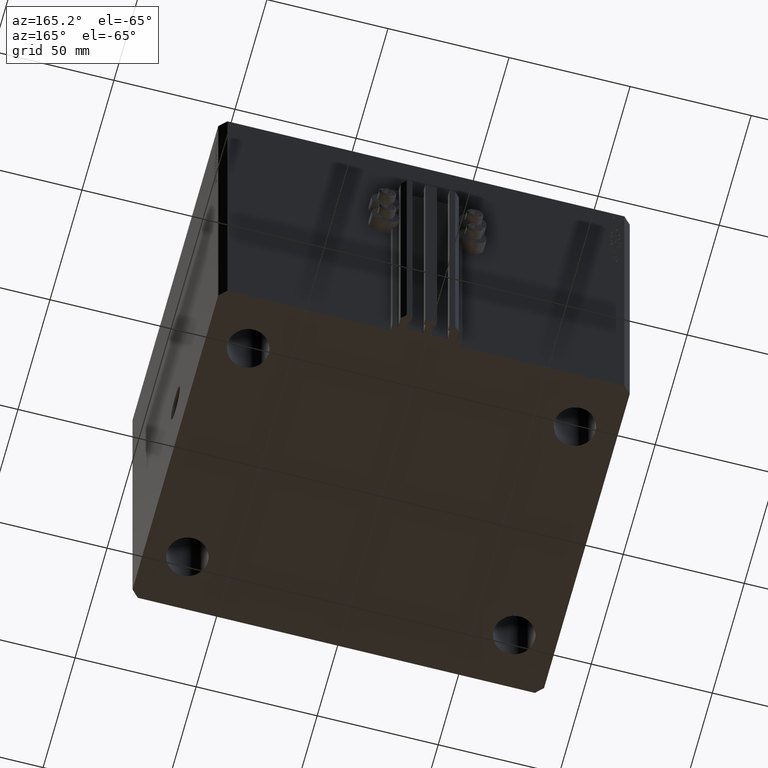
[diagram: clean part render]
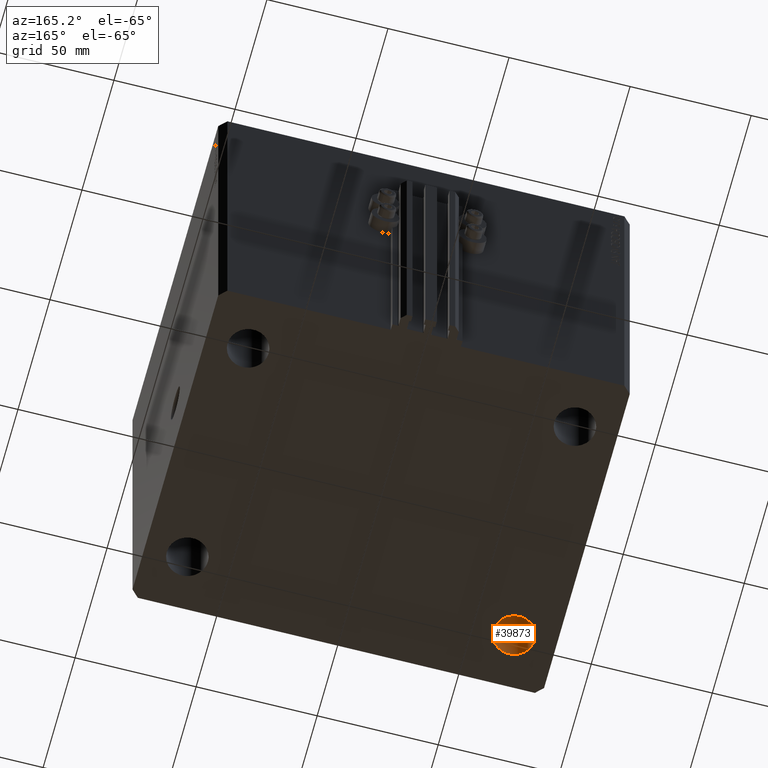
[diagram: same view with one face highlighted and labeled with its STEP entity id]
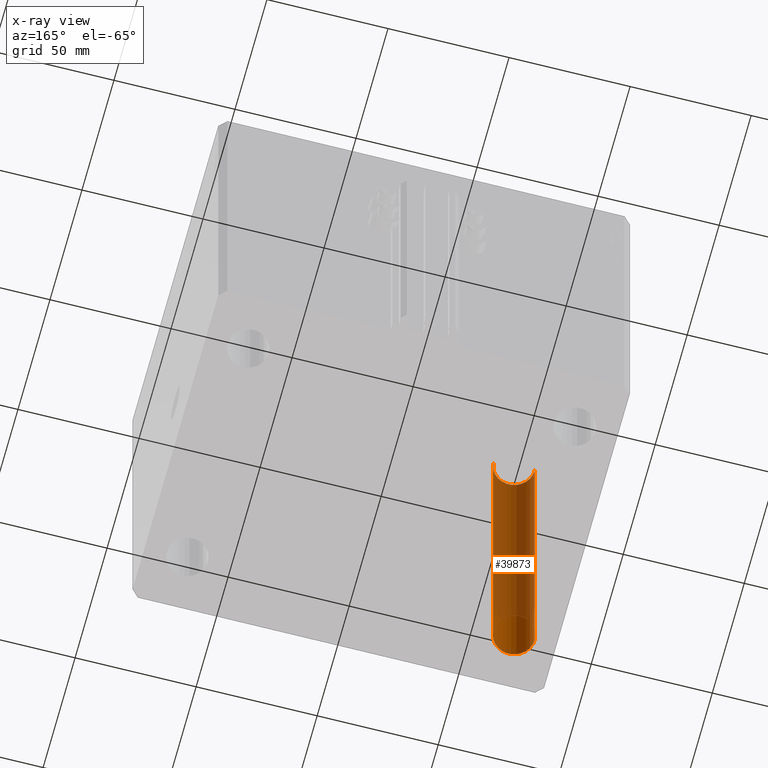
[diagram: x-ray of the same camera — body ghosted, the highlighted face saturated]
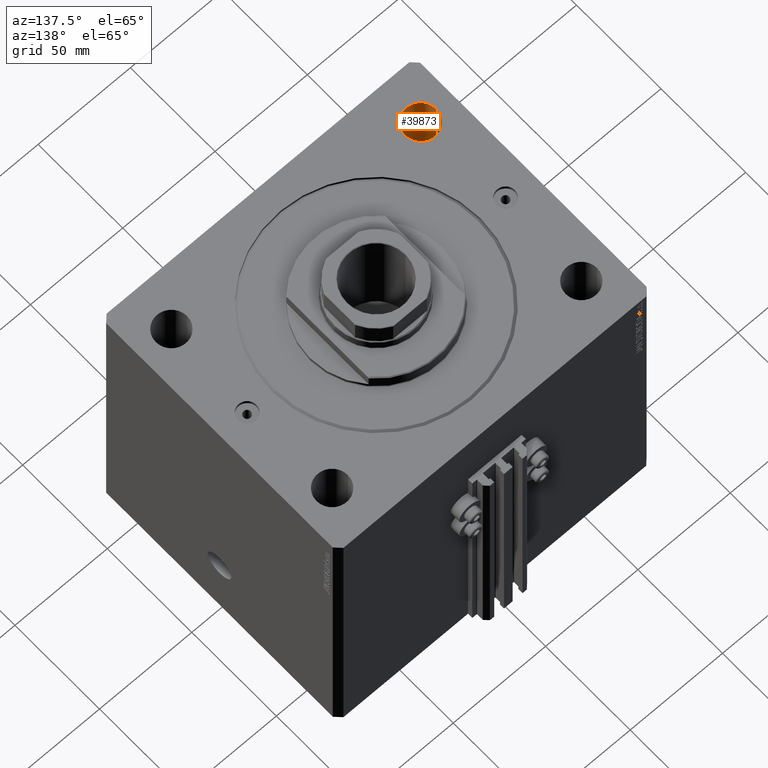
[diagram: same view with one face highlighted and labeled with its STEP entity id]
A machine part, auxiliary view. The second image highlights one B-rep face of the part: STEP entity #39873.
The next image is the same camera in x-ray: the body ghosted, the highlighted face saturated — about 80% of this face is hidden behind the body in this view.
A second angle (auxiliary view) of the same face is appended — the face is thin or edge-on in the first view.
In plain terms, the highlighted cylindrical surface (edge-blend (fillet) strip) has radius 8.5 mm, axis along (0, 0, 1).
Its self-contained STEP definition (entity closure, byte-faithful):
#778 = ORIENTED_EDGE ( 'NONE', *, *, #28060, .T. ) ;
#1641 = DIRECTION ( 'NONE',  ( -0.000000000000000000, -0.000000000000000000, 1.000000000000000000 ) ) ;
#1870 = DIRECTION ( 'NONE',  ( -0.000000000000000000, -0.000000000000000000, 1.000000000000000000 ) ) ;
#2826 = CARTESIAN_POINT ( 'NONE',  ( -67.49999999999998579, -47.50000000000001421, -160.0000000000000000 ) ) ;
#3203 = VERTEX_POINT ( 'NONE', #3896 ) ;
#3468 = DIRECTION ( 'NONE',  ( -0.000000000000000000, -0.000000000000000000, 1.000000000000000000 ) ) ;
#3896 = CARTESIAN_POINT ( 'NONE',  ( -75.99999999999998579, -47.50000000000001421, 0.000000000000000000 ) ) ;
#4164 = EDGE_CURVE ( 'NONE', #3203, #16379, #46799, .T. ) ;
#5632 = AXIS2_PLACEMENT_3D ( 'NONE', #17467, #32485, #10770 ) ;
#5937 = CARTESIAN_POINT ( 'NONE',  ( -59.00000000000000000, -47.50000000000001421, -160.0000000000000000 ) ) ;
#6818 = CIRCLE ( 'NONE', #39590, 8.499999999999992895 ) ;
#9219 = EDGE_CURVE ( 'NONE', #34768, #16379, #24101, .T. ) ;
#9268 = CYLINDRICAL_SURFACE ( 'NONE', #10721, 8.499999999999992895 ) ;
#9346 = ORIENTED_EDGE ( 'NONE', *, *, #23106, .T. ) ;
#10706 = DIRECTION ( 'NONE',  ( 1.000000000000000000, 0.000000000000000000, 0.000000000000000000 ) ) ;
#10721 = AXIS2_PLACEMENT_3D ( 'NONE', #23630, #1870, #45539 ) ;
#10770 = DIRECTION ( 'NONE',  ( 1.000000000000000000, 0.000000000000000000, 0.000000000000000000 ) ) ;
#15962 = FACE_OUTER_BOUND ( 'NONE', #43620, .T. ) ;
#16379 = VERTEX_POINT ( 'NONE', #39193 ) ;
#17332 = CARTESIAN_POINT ( 'NONE',  ( -75.99999999999998579, -47.50000000000001421, -184.0416305603426395 ) ) ;
#17467 = CARTESIAN_POINT ( 'NONE',  ( -67.49999999999998579, -47.50000000000001421, 0.000000000000000000 ) ) ;
#20018 = VERTEX_POINT ( 'NONE', #25046 ) ;
#20540 = ORIENTED_EDGE ( 'NONE', *, *, #4164, .T. ) ;
#20551 = ORIENTED_EDGE ( 'NONE', *, *, #9219, .F. ) ;
#23106 = EDGE_CURVE ( 'NONE', #20018, #3203, #28556, .T. ) ;
#23630 = CARTESIAN_POINT ( 'NONE',  ( -67.49999999999998579, -47.50000000000001421, -184.0416305603426395 ) ) ;
#24101 = LINE ( 'NONE', #45545, #44738 ) ;
#25046 = CARTESIAN_POINT ( 'NONE',  ( -75.99999999999998579, -47.50000000000001421, -160.0000000000000000 ) ) ;
#28060 = EDGE_CURVE ( 'NONE', #34768, #20018, #6818, .T. ) ;
#28556 = LINE ( 'NONE', #17332, #42490 ) ;
#32485 = DIRECTION ( 'NONE',  ( 0.000000000000000000, 0.000000000000000000, 1.000000000000000000 ) ) ;
#34768 = VERTEX_POINT ( 'NONE', #5937 ) ;
#39193 = CARTESIAN_POINT ( 'NONE',  ( -59.00000000000000000, -47.50000000000001421, 0.000000000000000000 ) ) ;
#39590 = AXIS2_PLACEMENT_3D ( 'NONE', #2826, #46521, #10706 ) ;
#39873 = ADVANCED_FACE ( 'NONE', ( #15962 ), #9268, .F. ) ;
#42490 = VECTOR ( 'NONE', #3468, 1000.000000000000000 ) ;
#43620 = EDGE_LOOP ( 'NONE', ( #778, #9346, #20540, #20551 ) ) ;
#44738 = VECTOR ( 'NONE', #1641, 1000.000000000000000 ) ;
#45539 = DIRECTION ( 'NONE',  ( 1.000000000000000000, 0.000000000000000000, 0.000000000000000000 ) ) ;
#45545 = CARTESIAN_POINT ( 'NONE',  ( -59.00000000000000000, -47.50000000000001421, -184.0416305603426395 ) ) ;
#46521 = DIRECTION ( 'NONE',  ( -0.000000000000000000, -0.000000000000000000, -1.000000000000000000 ) ) ;
#46799 = CIRCLE ( 'NONE', #5632, 8.499999999999992895 ) ;